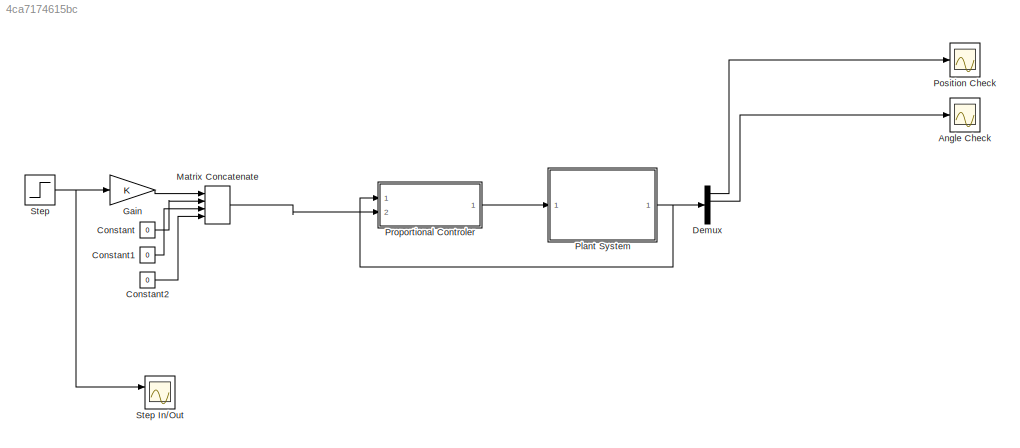
MODEL slx_4ca7174615bc
KIND model
CONFIG AbsTol = auto
CONFIG FixedStep = auto
CONFIG MaxStep = auto
CONFIG MinStep = auto
CONFIG RelTol = 1e-3
CONFIG SampleTimeConstraint = Unconstrained
CONFIG Solver = VariableStepAuto
CONFIG SolverMode = Auto
CONFIG SolverName = VariableStepAuto
CONFIG StartTime = 0.0
CONFIG StopTime = 20.0
BLOCK [Scope] Angle Check
  Ports = [1]
  ScopeSpecificationString = Simulink.scopes.TimeScopeBlockCfg('CurrentConfiguration', extmgr.ConfigurationSet(extmgr.Configuration('Core','General UI',true),extmgr.Configuration('Core','Source UI',true),extmgr.Configuration('Sources','WiredSimulink',true,'DataLoggingVariableName','ScopeData3'),extmgr.Configuration('Visuals','Time Domain',true,'SerializedDisplays',{struct('MinYLimReal','-0.01826','MaxYLimReal','0.03889','YLab...<+1421ch>
BLOCK [Constant] Constant
  Value = 0
BLOCK [Constant] Constant1
  Value = 0
BLOCK [Constant] Constant2
  Value = 0
BLOCK [Demux] Demux
  DisplayOption = bar
  Ports = [1, 4]
BLOCK [Gain] Gain
  OutDataTypeStr = Inherit: Inherit via internal rule
  ParamDataTypeStr = Inherit: Inherit via internal rule
  SaturateOnIntegerOverflow = off
BLOCK [Concatenate] Matrix Concatenate
  Mode = Multidimensional array
  NumInputs = 4
  Ports = [4, 1]
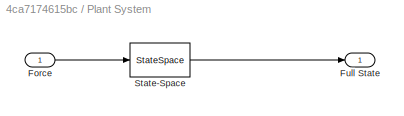
BLOCK [SubSystem] Plant System
  Ports = [1, 1]
  RequestExecContextInheritance = off
  Variant = off
BLOCK [Inport] Plant System/Force
  IconDisplay = Port number
BLOCK [Outport] Plant System/Full State
  IconDisplay = Port number
BLOCK [StateSpace] Plant System/State-Space
  A = A
  B = B
  C = C
  D = D
  Ports = [1, 1]
  X0 = [0;0;0;0]
BLOCK [Scope] Position Check
  Ports = [1]
  ScopeSpecificationString = Simulink.scopes.TimeScopeBlockCfg('CurrentConfiguration', extmgr.ConfigurationSet(extmgr.Configuration('Core','General UI',true),extmgr.Configuration('Core','Source UI',true),extmgr.Configuration('Sources','WiredSimulink',true,'DataLoggingVariableName','ScopeData2'),extmgr.Configuration('Visuals','Time Domain',true,'SerializedDisplays',{struct('MinYLimReal','-0.14033','MaxYLimReal','1.1267','YLabe...<+1417ch>
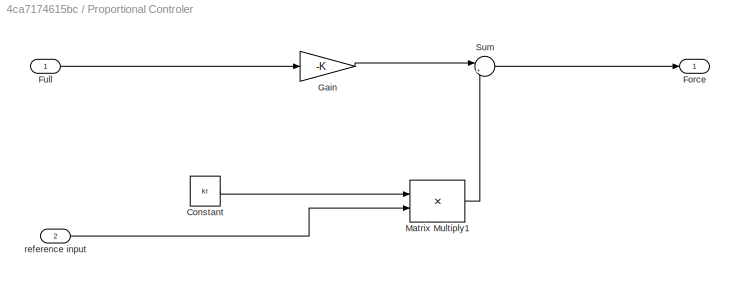
BLOCK [SubSystem] Proportional Controler
  Ports = [2, 1]
  RequestExecContextInheritance = off
  Variant = off
BLOCK [Constant] Proportional Controler/Constant
  Value = kr
  VectorParams1D = off
BLOCK [Outport] Proportional Controler/Force
  IconDisplay = Port number
BLOCK [Inport] Proportional Controler/Full
  IconDisplay = Port number
BLOCK [Gain] Proportional Controler/Gain
  Gain = -K
  Multiplication = Matrix(K*u)
  OutDataTypeStr = Inherit: Inherit via internal rule
  ParamDataTypeStr = Inherit: Inherit via internal rule
  SaturateOnIntegerOverflow = off
BLOCK [Product] Proportional Controler/Matrix Multiply1
  InputSameDT = off
  Multiplication = Matrix(*)
  OutDataTypeStr = Inherit: Inherit via internal rule
  Ports = [2, 1]
  RndMeth = Floor
  SaturateOnIntegerOverflow = off
BLOCK [Sum] Proportional Controler/Sum
  IconShape = round
  InputSameDT = off
  Inputs = |++
  OutDataTypeStr = Inherit: Inherit via internal rule
  Ports = [2, 1]
  SaturateOnIntegerOverflow = off
BLOCK [Inport] Proportional Controler/reference input
  IconDisplay = Port number
  Port = 2
BLOCK [Step] Step
  SampleTime = 0
BLOCK [Scope] Step In//Out 
  NumInputPorts = 2
  Ports = [2]
  ScopeSpecificationString = Simulink.scopes.TimeScopeBlockCfg('CurrentConfiguration', extmgr.ConfigurationSet(extmgr.Configuration('Core','General UI',true),extmgr.Configuration('Core','Source UI',true),extmgr.Configuration('Sources','WiredSimulink',true,'DataLoggingVariableName','ScopeData1'),extmgr.Configuration('Visuals','Time Domain',true,'SerializedDisplays',{struct('MinYLimReal','-85694316004393448000000000000000000000...<+2540ch>
LINE Constant1:1 -> Matrix Concatenate:3
LINE Constant2:1 -> Matrix Concatenate:4
LINE Constant:1 -> Matrix Concatenate:2
LINE Demux:1 -> Position Check:1
LINE Demux:2 -> Angle Check:1
LINE Gain:1 -> Matrix Concatenate:1
LINE Matrix Concatenate:1 -> Proportional Controler:2
LINE Plant System/Force:1 -> Plant System/State-Space:1
LINE Plant System/State-Space:1 -> Plant System/Full State:1
NET Plant System:1 -> Demux:1, Proportional Controler:1
LINE Proportional Controler/Constant:1 -> Proportional Controler/Matrix Multiply1:1
LINE Proportional Controler/Full:1 -> Proportional Controler/Gain:1
LINE Proportional Controler/Gain:1 -> Proportional Controler/Sum:1
LINE Proportional Controler/Matrix Multiply1:1 -> Proportional Controler/Sum:2
LINE Proportional Controler/Sum:1 -> Proportional Controler/Force:1
LINE Proportional Controler/reference input:1 -> Proportional Controler/Matrix Multiply1:2
LINE Proportional Controler:1 -> Plant System:1
NET Step:1 -> Gain:1, Step In//Out :1
note: NET lines group one-source signal fan-out (src -> all destinations, sorted); 1:1 wires keep LINE
